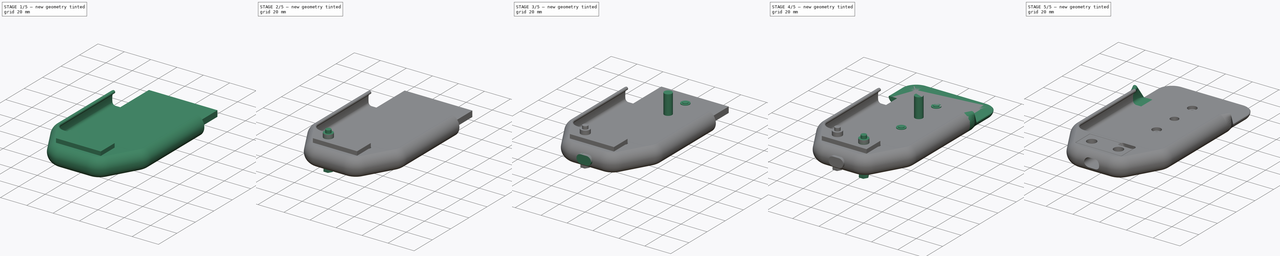
[diagram: build sequence overview — one tinted view per stage of 5, left to right]
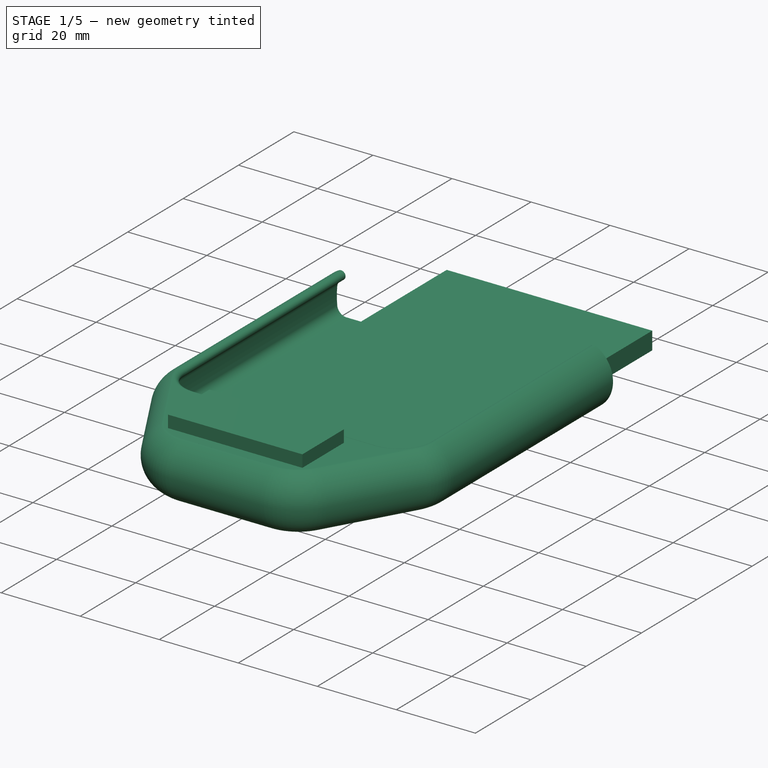
[diagram: stage 1 of 5 — iso view after this stage's code; geometry added in this stage tinted green]
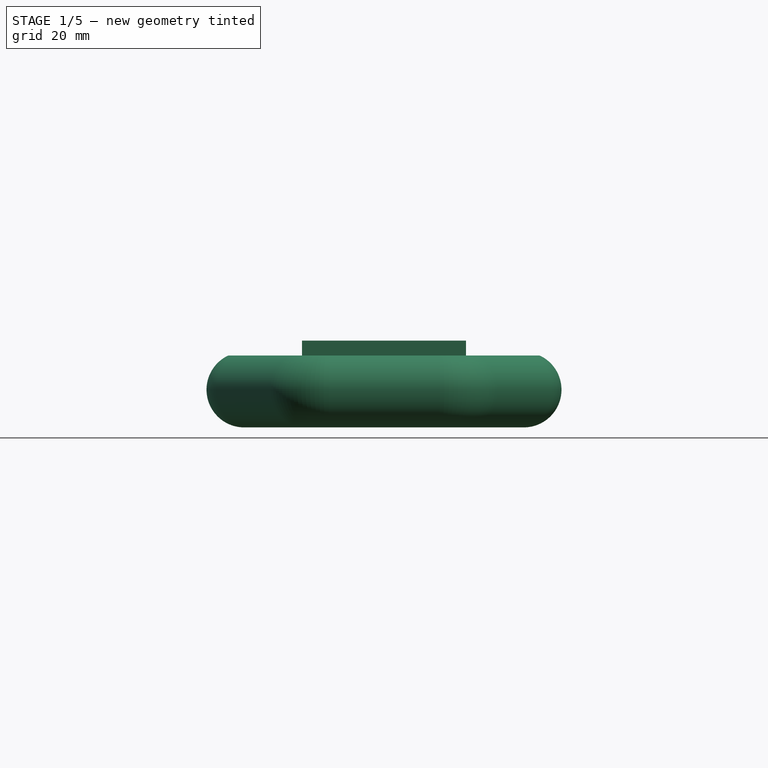
[diagram: stage 1 of 5 — front view after this stage's code; geometry added in this stage tinted green]
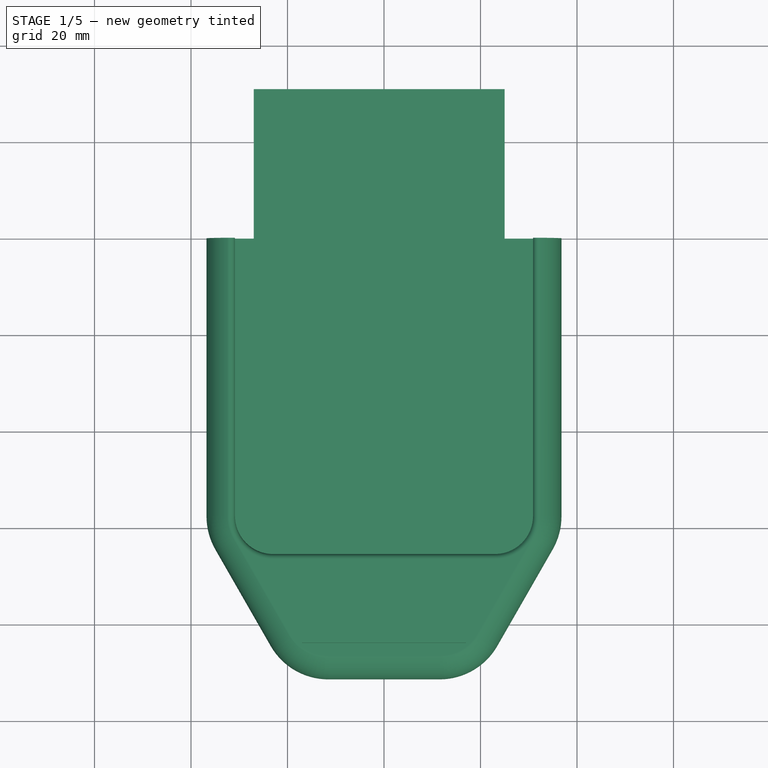
[diagram: stage 1 of 5 — top view after this stage's code; geometry added in this stage tinted green]
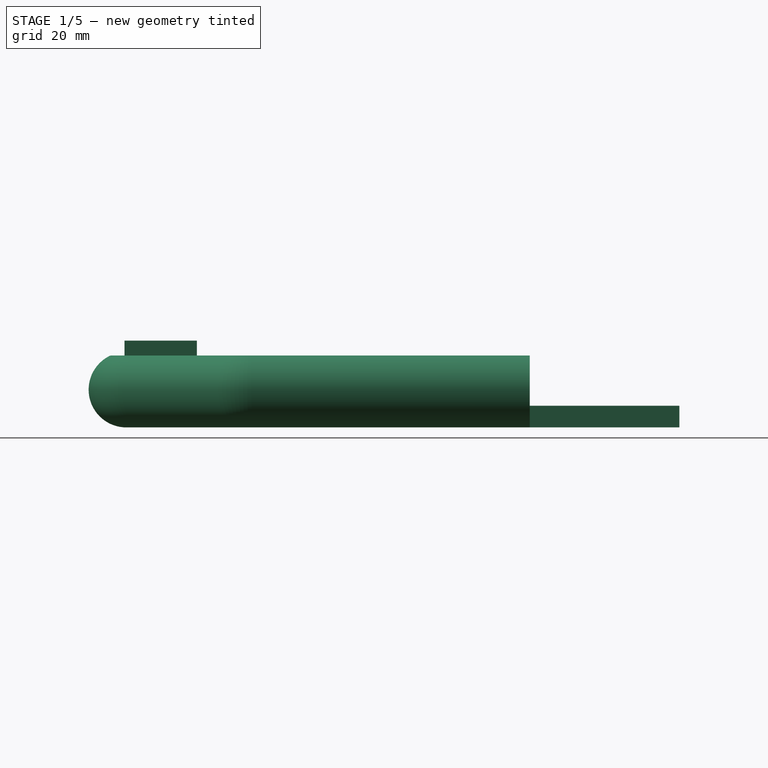
[diagram: stage 1 of 5 — right view after this stage's code; geometry added in this stage tinted green]
FCSTD DOCUMENT  (FreeCAD 0.18R16093 (Git))
Label: galaxy_a3_car_mount
License: All rights reserved
LicenseURL: http://en.wikipedia.org/wiki/All_rights_reserved
objects: Sketcher::SketchObject×14, Part::MultiFuse×6, Part::Cylinder×5, PartDesign::Body×3, Image::ImagePlane×2, Part::Extrusion×2, Part::Loft×2, Part::Mirroring×2, PartDesign::AdditiveBox×2, PartDesign::SubtractivePipe×2, Part::Cut×2, Part::Box×2, Spreadsheet::Sheet×1, PartDesign::FeatureBase×1, Part::RegularPolygon×1, Part::Sweep×1, PartDesign::SubtractiveBox×1, PartDesign::SubtractiveLoft×1, Part::MultiCommon×1
note: 54 computed .brp shape members not serialized (recipe doc carries the construction recipe); baked Part::Feature solids carry a one-line shape summary decoded from their .brp

FEATURE [Sketcher::SketchObject] Sketch009  label="KlemmSweepPath"
  ExternalGeometry = -> [Sketch004,Sketch003]
  MapMode = 5
  Support = -> [XY_Plane]
  sketch-geometry (9):
    g0: ArcOfCircle CenterX=23 CenterY=-57.65 CenterZ=0 NormalX=0 NormalY=0 NormalZ=1 AngleXU=0 Radius=10.1 StartAngle=5.76241 EndAngle=6.28319
    g1: LineSegment StartX=31.7611 StartY=-62.6753 StartZ=0 EndX=20.2893 EndY=-82.6753 EndZ=0
    g2: LineSegment StartX=11.5282 StartY=-87.75 StartZ=0 EndX=-11.5282 EndY=-87.75 EndZ=0
    g3: LineSegment StartX=-20.2893 StartY=-82.6753 StartZ=0 EndX=-31.7611 EndY=-62.6753 EndZ=0
    g4: ArcOfCircle CenterX=-23 CenterY=-57.65 CenterZ=0 NormalX=0 NormalY=0 NormalZ=1 AngleXU=0 Radius=10.1 StartAngle=3.14159 EndAngle=3.66237
    g5: ArcOfCircle CenterX=-11.5282 CenterY=-77.65 CenterZ=0 NormalX=0 NormalY=0 NormalZ=1 AngleXU=0 Radius=10.1 StartAngle=3.66237 EndAngle=4.71239
    g6: ArcOfCircle CenterX=11.5282 CenterY=-77.65 CenterZ=0 NormalX=0 NormalY=0 NormalZ=1 AngleXU=0 Radius=10.1 StartAngle=4.71239 EndAngle=5.76241
    g7: LineSegment StartX=33.1 StartY=-57.65 StartZ=0 EndX=33.1 EndY=0 EndZ=0
    g8: LineSegment StartX=-33.1 StartY=-57.65 StartZ=0 EndX=-33.1 EndY=0 EndZ=0
  constraints (22):
    c: Coincident(g0,g-3)
    c: Coincident(g0,g-3)
    c: Tangent(g4,g3) = 1.5708
    c: Tangent(g3,g5) = 1.5708
    c: Tangent(g5,g2) = 1.5708
    c: Tangent(g2,g6) = 1.5708
    c: Tangent(g6,g1) = 1.5708
    c: Tangent(g1,g0) = 1.5708
    c: Equal(g0,g6)
    c: Equal(g6,g5)
    c: Equal(g5,g4)
    c: Symmetric(g2,g2,g-2)
    c: DistanceY(g2,g-3) = 20
    c: Equal(g1,g2)
    c: Symmetric(g4,g0,g-2)
    c: Horizontal(g4,g0)
    c: Coincident(g7,g0)
    c: Horizontal(g7,g-4)
    c: Vertical(g7)
    c: Coincident(g8,g4)
    c: PointOnObject(g8,g-1)
    c: Vertical(g8)
FEATURE [Sketcher::SketchObject] Sketch010  label="outer_bevel"
  MapMode = 5
  Placement = pos=(0,0,0) rot=(1,0,0;1.5708rad)
  Support = -> [XZ_Plane]
  sketch-geometry (7):
    g0: ArcOfCircle CenterX=31.9997 CenterY=9.31965 CenterZ=0 NormalX=0 NormalY=0 NormalZ=1 AngleXU=0 Radius=1.1 StartAngle=1.1028 EndAngle=1.5708
    g1: ArcOfCircle CenterX=28.9684 CenterY=3.32221 CenterZ=0 NormalX=0 NormalY=0 NormalZ=1 AngleXU=0 Radius=7.82 StartAngle=4.71239 EndAngle=7.38599
    g2: LineSegment StartX=31.9997 StartY=10.4196 StartZ=0 EndX=31.9997 EndY=15.4196 EndZ=0
    g3: LineSegment StartX=31.9997 StartY=15.4196 StartZ=0 EndX=71.9997 EndY=15.4196 EndZ=0
    g4: LineSegment StartX=71.9997 StartY=15.4196 StartZ=0 EndX=71.9997 EndY=-9.49779 EndZ=0
    g5: LineSegment StartX=71.9997 StartY=-9.49779 StartZ=0 EndX=28.9684 EndY=-9.49779 EndZ=0
    g6: LineSegment StartX=28.9684 StartY=-9.49779 StartZ=0 EndX=28.9684 EndY=-4.49779 EndZ=0
  constraints (22):
    c: Radius(g1) = 7.82
    c: DistanceX(g1) = 28.9684
    c: DistanceY(g1) = 3.32221
    c: DistanceX(g0) = 31.9997
    c: Vertical(g1,g1)
    c: Tangent(g1,g0) = -1.5708
    c: Radius(g0) = 1.1
    c: Vertical(g0,g0)
    c: Vertical(g2)
    c: Coincident(g2,g3)
    c: Horizontal(g3)
    c: Coincident(g3,g4)
    c: Vertical(g4)
    c: Coincident(g4,g5)
    c: Coincident(g5,g6)
    c: Coincident(g6,g1)
    c: Vertical(g6)
    c: Horizontal(g5)
    c: DistanceY(g6,g6) = 5
    c: DistanceY(g2,g2) = 5
    c: DistanceX(g3,g3) = 40
    c: Coincident(g2,g0)
FEATURE [PartDesign::AdditiveBox] Box001
  AttacherType = Attacher::AttachEngine3D
  AttachmentOffset = pos=(-40,-95,-4.5) rot=(0,0,1;0rad)
  Height = 14.92
  Length = 80
  MapMode = 2
  Placement = pos=(-40,-95,-4.5) rot=(0,0,1;0rad)
  Support = -> [X_Axis]
  Width = 95
FEATURE [Sketcher::SketchObject] Sketch011  label="inner_bevel"
  ExternalGeometry = -> [Sketch]
  MapMode = 5
  Placement = pos=(0,0,0) rot=(1,0,0;1.5708rad)
  Support = -> [XZ_Plane]
  expr: Constraints[14] = Sketch003.Constraints[19]
  expr: Constraints[2] = Sketch003.Constraints[7]
  expr: Constraints[3] = Sketch003.Constraints[8]
  expr: Constraints[9] = Sketch003.Constraints[14]
  expr: Constraints[7] = Sketch003.Constraints[12]
  expr: Constraints[4] = Sketch003.Constraints[9]
  sketch-geometry (8):
    g0: ArcOfCircle CenterX=31.9998 CenterY=9.31961 CenterZ=0 NormalX=0 NormalY=0 NormalZ=1 AngleXU=0 Radius=1.1 StartAngle=1.5708 EndAngle=4.33695
    g1: LineSegment StartX=25 StartY=0 StartZ=0 EndX=30.647 EndY=0 EndZ=0
    g2: ArcOfCircle CenterX=30.7791 CenterY=6.22251 CenterZ=0 NormalX=0 NormalY=0 NormalZ=1 AngleXU=0 Radius=2.22898 StartAngle=0.085128 EndAngle=1.19535
    g3: ArcOfCircle CenterX=8.09053 CenterY=4.2864 CenterZ=0 NormalX=0 NormalY=0 NormalZ=1 AngleXU=0 Radius=25 StartAngle=6.19806 EndAngle=6.36831
    g4: ArcOfCircle CenterX=30.647 CenterY=2.36156 CenterZ=0 NormalX=0 NormalY=0 NormalZ=1 AngleXU=0 Radius=2.36156 StartAngle=4.71239 EndAngle=6.19806
    g5: LineSegment StartX=25 StartY=0 StartZ=0 EndX=25 EndY=15 EndZ=0
    g6: LineSegment StartX=25 StartY=15 StartZ=0 EndX=31.9998 EndY=15 EndZ=0
    g7: LineSegment StartX=31.9998 StartY=15 StartZ=0 EndX=31.9998 EndY=10.4196 EndZ=0
  constraints (26):
    c: Horizontal(g1)
    c: PointOnObject(g1,g-1)
    c: Radius(g0) = 1.1
    c: Radius(g3) = 25
    c: DistanceX(g3) = 33
    c: Tangent(g2,g3) = -1.5708
    c: Vertical(g2,g3)
    c: DistanceY(g3) = 2.16077
    c: Tangent(g0,g2) = 1.5708
    c: DistanceX(g0) = 31.5964
    c: Coincident(g4,g1)
    c: Coincident(g4,g3)
    c: Tangent(g4,g3)
    c: Vertical(g4,g1)
    c: DistanceY(g0) = 8.29623
    c: DistanceX(g1) = 25
    c: Coincident(g1,g5)
    c: Vertical(g5)
    c: Coincident(g5,g6)
    c: Horizontal(g6)
    c: DistanceY(g5,g5) = 15
    c: DistanceX(g0) = 31.9998
    c: Vertical(g0,g0)
    c: Coincident(g7,g6)
    c: Coincident(g7,g0)
    c: Vertical(g7)
FEATURE [PartDesign::SubtractivePipe] SubtractivePipe
  AuxilleryCurvelinear = true
  AuxillerySpineTangent = false
  BaseFeature = -> Box001
  Binormal = (0,0,0)
  Mode = 0
  Placement = pos=(-40,-95,-4.5) rot=(0,0,1;0rad)
  Profile = -> Sketch010
  Spine = -> Sketch009 [Edge9,Edge8,Edge7,Edge6,Edge5,Edge4,Edge3,Edge2,Edge1]
  SpineTangent = false
  Transformation = 0
  Transition = 0
FEATURE [PartDesign::SubtractivePipe] SubtractivePipe001
  AuxilleryCurvelinear = true
  AuxillerySpineTangent = false
  BaseFeature = -> SubtractivePipe
  Binormal = (0,0,0)
  Mode = 0
  Placement = pos=(-40,-95,-4.5) rot=(0,0,1;0rad)
  Profile = -> Sketch011
  Spine = -> Sketch004 [Edge1,Edge2,Edge3,Edge4,Edge5]
  SpineTangent = false
  Transformation = 0
  Transition = 0
FEATURE [PartDesign::SubtractiveBox] Box002
  AttacherType = Attacher::AttachEngine3D
  AttachmentOffset = pos=(-26,-62,0) rot=(0,0,1;0rad)
  BaseFeature = -> SubtractivePipe001
  Height = 15
  Length = 52
  MapMode = 2
  Placement = pos=(-26,-62,0) rot=(0,0,1;0rad)
  Support = -> [X_Axis]
  Width = 62
FEATURE [PartDesign::AdditiveBox] Box003
  AttacherType = Attacher::AttachEngine3D
  AttachmentOffset = pos=(-27,0,-4.5) rot=(0,0,1;0rad)
  BaseFeature = -> Box002
  Height = 4.5
  Length = 52
  MapMode = 5
  Placement = pos=(-27,0,-4.5) rot=(0,0,1;0rad)
  Support = -> [XY_Plane]
  Width = 31
FEATURE [Part::Box] Box004  label="ClampSeparatorInner"
  AttacherType = Attacher::AttachEngine3D
  Height = 10
  Length = 34
  Placement = pos=(-17,-84,3.5) rot=(0,0,1;0rad)
  Width = 15
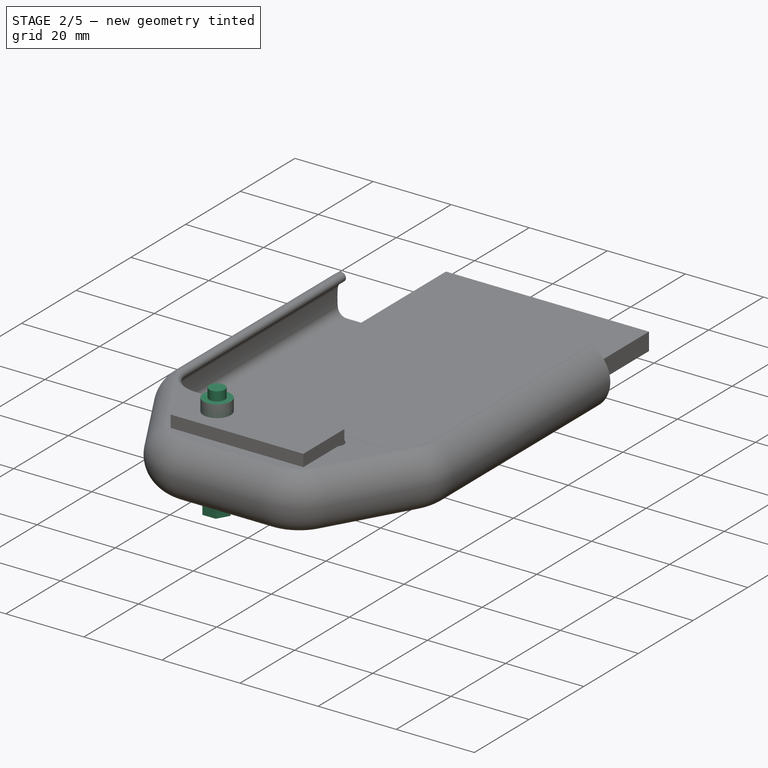
[diagram: stage 2 of 5 — iso view after this stage's code; geometry added in this stage tinted green]
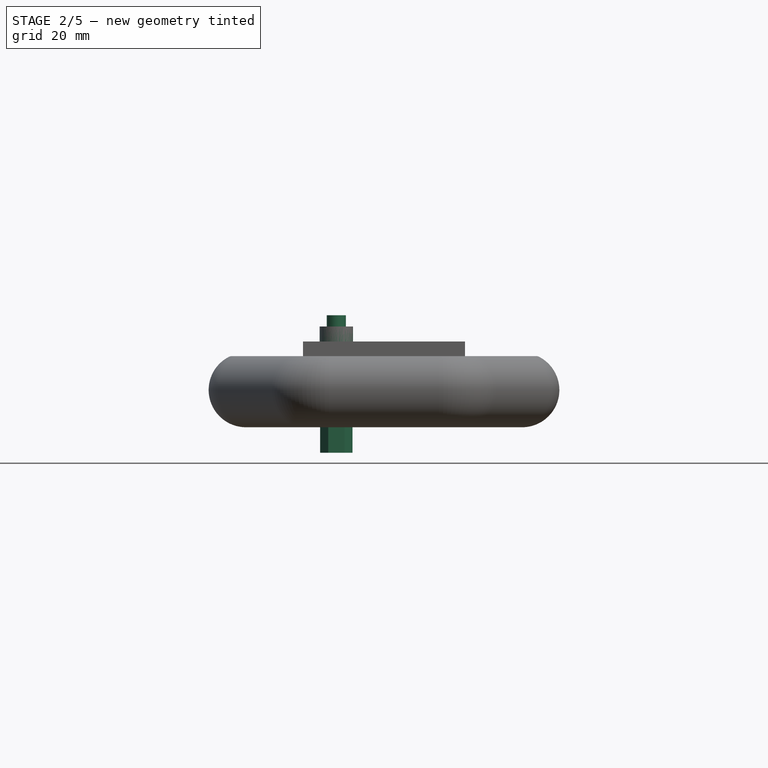
[diagram: stage 2 of 5 — front view after this stage's code; geometry added in this stage tinted green]
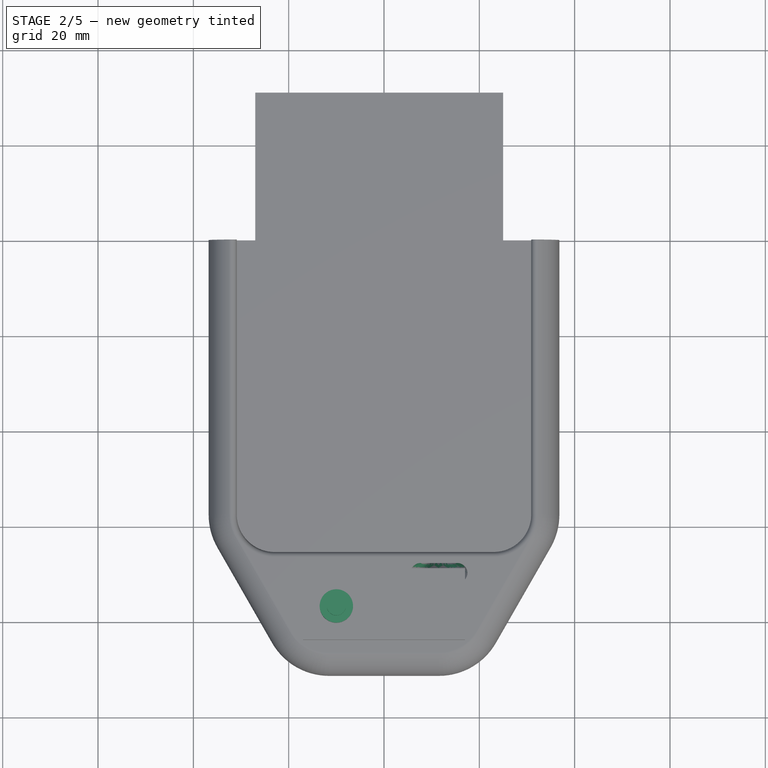
[diagram: stage 2 of 5 — top view after this stage's code; geometry added in this stage tinted green]
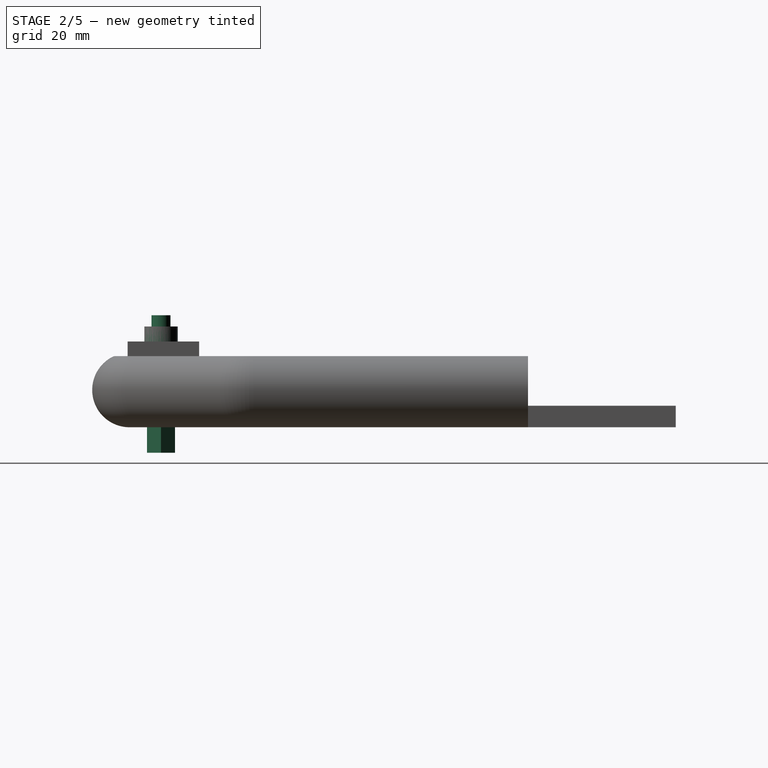
[diagram: stage 2 of 5 — right view after this stage's code; geometry added in this stage tinted green]
FEATURE [Part::Cylinder] Cylinder003  label="ScrewHeadBore"
  Angle = 360
  AttacherType = Attacher::AttachEngine3D
  Height = 10
  Placement = pos=(10,-77,6.65) rot=(0,0,1;0rad)
  Radius = 3.5
  expr: Placement.Base.z = 3.4 + 0.25 + 3
FEATURE [Part::RegularPolygon] RegularPolygon002  label="Regular polygon002"
  AttacherType = Attacher::AttachEngine3D
  Circumradius = 3.4
  Placement = pos=(10,-77,0) rot=(0,0,1;0rad)
  Polygon = 6
FEATURE [Part::Extrusion] Extrude003  label="NutBore"
  Base = -> RegularPolygon002
  Dir = (0,0,1)
  DirMode = 2
  FaceMakerClass = Part::FaceMakerBullseye
  LengthFwd = 0
  LengthRev = 10
  Placement = pos=(0,0,0.15) rot=(0,0,1;0rad)
  Solid = true
  Symmetric = false
  expr: Placement.Base.z = 3.4 - 0.25 - 3
FEATURE [Part::Cylinder] Cylinder004  label="ScrewBore"
  Angle = 360
  AttacherType = Attacher::AttachEngine3D
  Height = 20
  Placement = pos=(10,-77,-1) rot=(0,0,1;0rad)
  Radius = 2
FEATURE [Part::MultiFuse] Fusion003  label="ClampScrewHole"
  Shapes = -> [Cylinder004,Extrude003,Cylinder003]
FEATURE [Part::Mirroring] Part__Mirroring001  label="ClampScrewHole2"
  Base = (0,0,0)
  Normal = (1,0,0)
  Source = -> Fusion003
FEATURE [Sketcher::SketchObject] Sketch012
  AttachmentOffset = pos=(0,-1.5,67) rot=(0,0,1;0rad)
  MapMode = 5
  Placement = pos=(0,-67,-1.5) rot=(1,0,0;1.5708rad)
  Support = -> [XZ_Plane]
  sketch-geometry (1):
    g0: Circle CenterX=11.4 CenterY=4.7 CenterZ=0 NormalX=0 NormalY=0 NormalZ=1 AngleXU=0 Radius=2
  constraints (3):
    c: Radius(g0) = 2
    c: DistanceX(g-1,g0) = 11.4
    c: DistanceY(g-1,g0) = 4.7
FEATURE [Sketcher::SketchObject] Sketch013
  AttachmentOffset = pos=(0,0,11) rot=(0,0,1;0rad)
  MapMode = 5
  Placement = pos=(0,0,11) rot=(0,0,1;0rad)
  Support = -> [XY_Plane]
  sketch-geometry (4):
    g0: ArcOfCircle CenterX=7.42 CenterY=-70.1729 CenterZ=0 NormalX=0 NormalY=0 NormalZ=1 AngleXU=0 Radius=2.2 StartAngle=1.5708 EndAngle=4.71239
    g1: ArcOfCircle CenterX=15.64 CenterY=-70.1729 CenterZ=0 NormalX=0 NormalY=0 NormalZ=1 AngleXU=0 Radius=2.2 StartAngle=4.71239 EndAngle=7.85398
    g2: LineSegment StartX=7.42 StartY=-72.3729 StartZ=0 EndX=15.64 EndY=-72.3729 EndZ=0
    g3: LineSegment StartX=7.42 StartY=-67.9729 StartZ=0 EndX=15.64 EndY=-67.9729 EndZ=0
  constraints (10):
    c: Tangent(g0,g3) = 1.5708
    c: Tangent(g0,g2) = -1.5708
    c: Tangent(g2,g1) = -1.5708
    c: Tangent(g3,g1) = 1.5708
    c: Horizontal(g2)
    c: Equal(g0,g1)
    c: DistanceY(g1) = -70.1729
    c: Radius(g1) = 2.2
    c: DistanceX(g3,g3) = 8.22
    c: DistanceX(g-1,g0) = 7.42
FEATURE [PartDesign::SubtractiveLoft] SubtractiveLoft
  BaseFeature = -> Box003
  Closed = false
  Placement = pos=(-27,0,-4.5) rot=(0,0,1;0rad)
  Profile = -> Sketch012
  Ruled = false
  Sections = -> [Sketch013]
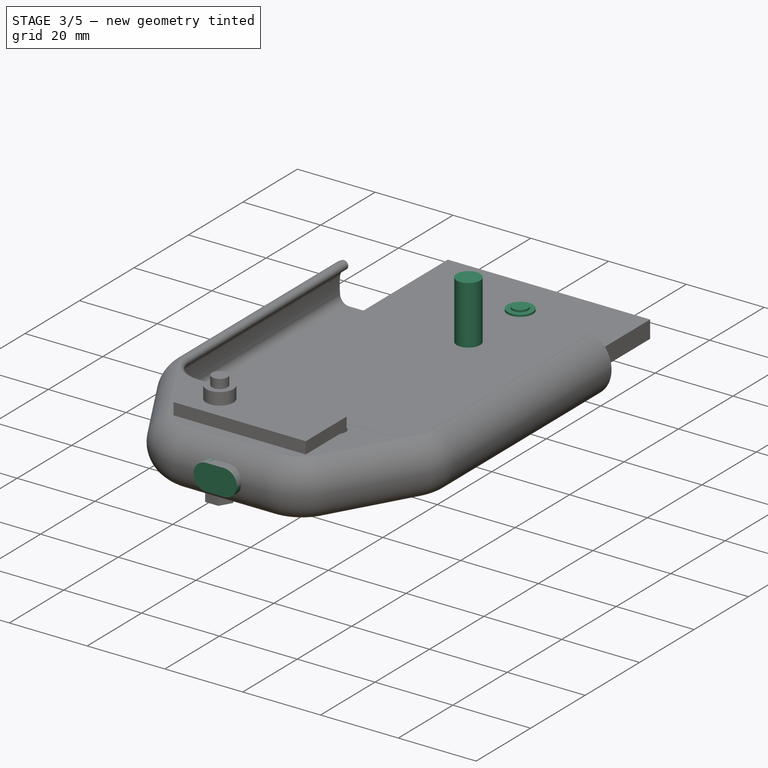
[diagram: stage 3 of 5 — iso view after this stage's code; geometry added in this stage tinted green]
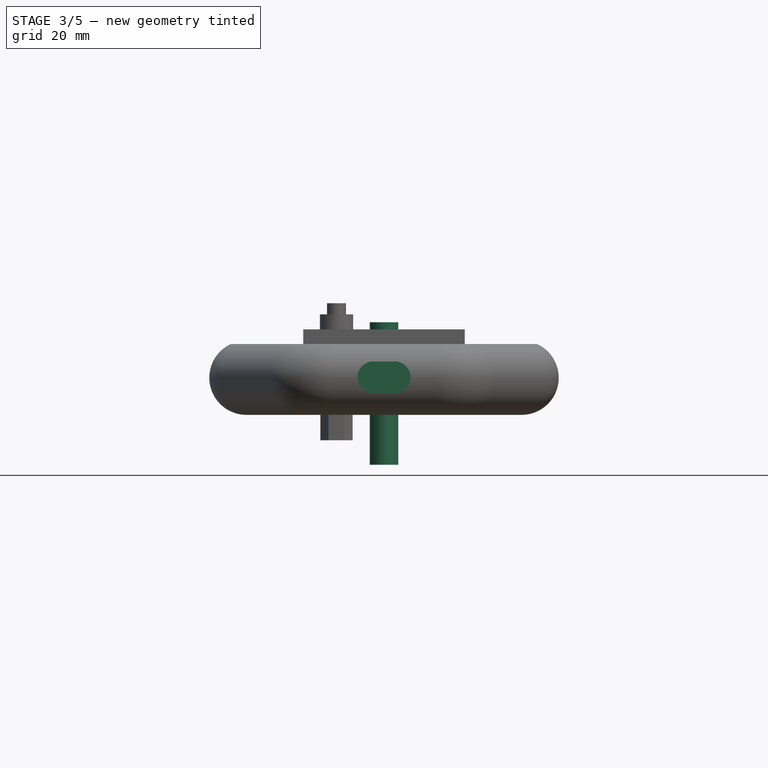
[diagram: stage 3 of 5 — front view after this stage's code; geometry added in this stage tinted green]
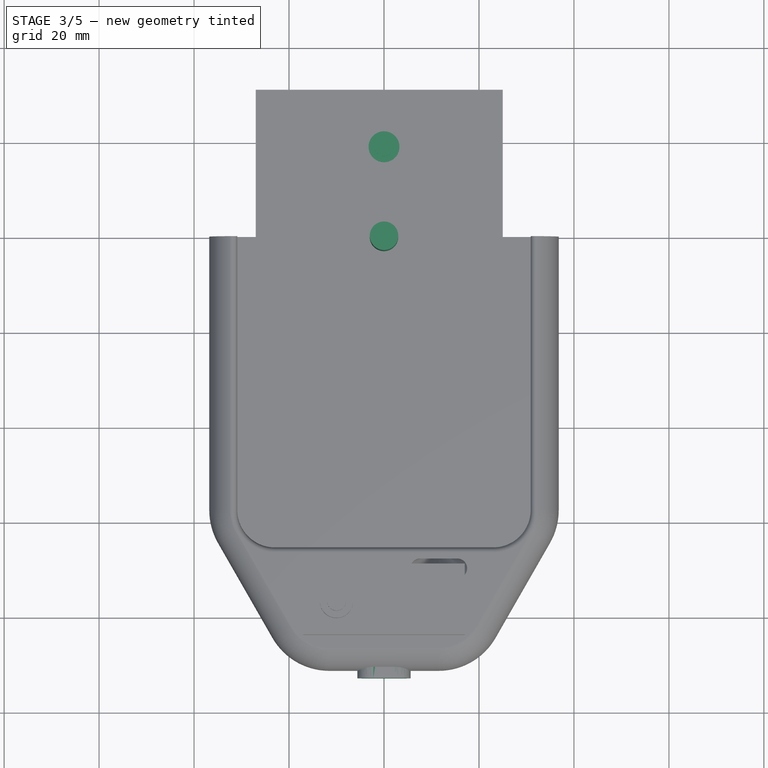
[diagram: stage 3 of 5 — top view after this stage's code; geometry added in this stage tinted green]
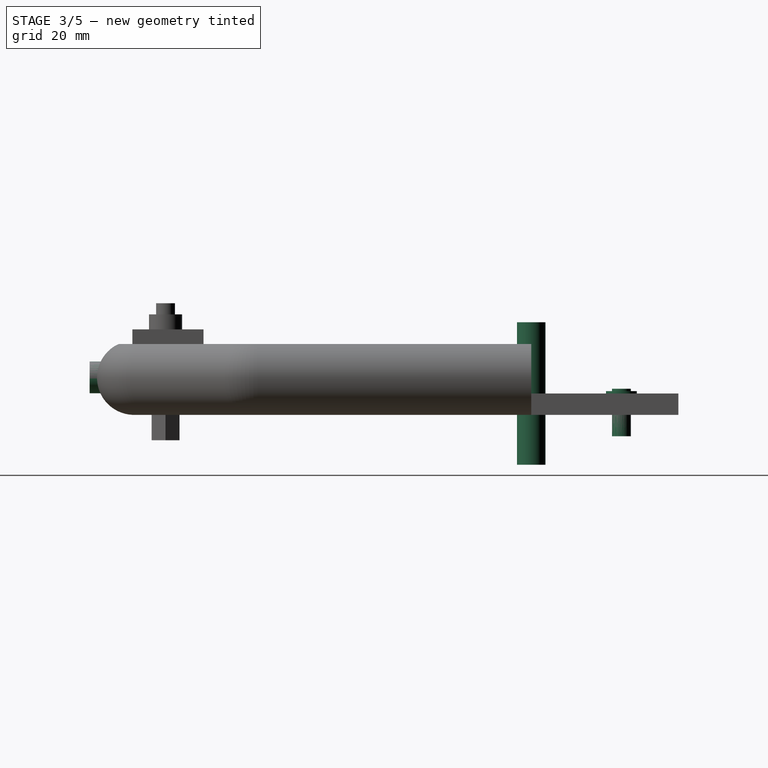
[diagram: stage 3 of 5 — right view after this stage's code; geometry added in this stage tinted green]
FEATURE [Image::ImagePlane] ImagePlane  label="a3_front"
  Placement = pos=(5.75,-19.85,-1) rot=(0,0,1;0rad)
  XSize = 94.8734
  YSize = 190.152
  expr: YSize = 469 * 0.40544193
  expr: XSize = 234 * 0.40544193
FEATURE [Sketcher::SketchObject] Sketch  label="front"
  MapMode = 5
  Support = -> [XY_Plane]
  sketch-geometry (8):
    g0: LineSegment StartX=-33 StartY=57.65 StartZ=0 EndX=-33 EndY=-57.65 EndZ=0
    g1: LineSegment StartX=33 StartY=57.65 StartZ=0 EndX=33 EndY=-57.65 EndZ=0
    g2: LineSegment StartX=-23 StartY=67.65 StartZ=0 EndX=23 EndY=67.65 EndZ=0
    g3: LineSegment StartX=-23 StartY=-67.65 StartZ=0 EndX=23 EndY=-67.65 EndZ=0
    g4: ArcOfCircle CenterX=-23 CenterY=57.65 CenterZ=0 NormalX=0 NormalY=0 NormalZ=1 AngleXU=0 Radius=10 StartAngle=1.5708 EndAngle=3.14159
    g5: ArcOfCircle CenterX=23 CenterY=57.65 CenterZ=0 NormalX=0 NormalY=0 NormalZ=1 AngleXU=0 Radius=10 StartAngle=0 EndAngle=1.5708
    g6: ArcOfCircle CenterX=-23 CenterY=-57.65 CenterZ=0 NormalX=0 NormalY=0 NormalZ=1 AngleXU=0 Radius=10 StartAngle=3.14159 EndAngle=4.71239
    g7: ArcOfCircle CenterX=23 CenterY=-57.65 CenterZ=0 NormalX=0 NormalY=0 NormalZ=1 AngleXU=0 Radius=10 StartAngle=4.71239 EndAngle=6.28319
  constraints (18):
    c: Vertical(g0)
    c: Vertical(g1)
    c: Symmetric(g1,g0,g-2)
    c: DistanceX(g0,g1) = 66
    c: Horizontal(g2)
    c: Horizontal(g3)
    c: Symmetric(g3,g2,g-1)
    c: DistanceY(g3,g2) = 135.3
    c: Tangent(g4,g0) = -1.5708
    c: Tangent(g4,g2) = 1.5708
    c: Radius(g4) = 10
    c: Tangent(g5,g2) = 1.5708
    c: Tangent(g5,g1) = 1.5708
    c: Tangent(g1,g7) = 1.5708
    c: Tangent(g7,g3) = -1.5708
    c: Tangent(g6,g3) = -1.5708
    c: Tangent(g6,g0) = -1.5708
    c: Equal(g6,g4)
FEATURE [Image::ImagePlane] ImagePlane001  label="a3_bottom"
  Placement = pos=(2.1,5,23.6) rot=(-1,0,0;4.71239rad)
  XSize = 82.7155
  YSize = 57.9064
  expr: YSize = 113 * 0.57650178 * 8 / 9
  expr: XSize = 150 * 0.57650178 * 66 / 69
FEATURE [Sketcher::SketchObject] Sketch001  label="bottom"
  AttachmentOffset = pos=(0,0,67.65) rot=(0,0,1;0rad)
  MapMode = 5
  Placement = pos=(0,-67.65,-1.5e-14) rot=(1,0,0;1.5708rad)
  Support = -> [XZ_Plane]
  sketch-geometry (5):
    g0: ArcOfCircle CenterX=-2.75 CenterY=3.4 CenterZ=0 NormalX=0 NormalY=0 NormalZ=1 AngleXU=0 Radius=2 StartAngle=1.5708 EndAngle=4.71239
    g1: ArcOfCircle CenterX=2.75 CenterY=3.4 CenterZ=0 NormalX=0 NormalY=0 NormalZ=1 AngleXU=0 Radius=2 StartAngle=4.71239 EndAngle=7.85398
    g2: LineSegment StartX=-2.75 StartY=5.4 StartZ=0 EndX=2.75 EndY=5.4 EndZ=0
    g3: LineSegment StartX=-2.75 StartY=1.4 StartZ=0 EndX=2.75 EndY=1.4 EndZ=0
    g4: Circle CenterX=11.4 CenterY=4.7 CenterZ=0 NormalX=0 NormalY=0 NormalZ=1 AngleXU=0 Radius=2
  constraints (16):
    c: Vertical(g0,g0)
    c: Vertical(g0,g0)
    c: Vertical(g1,g1)
    c: Vertical(g1,g1)
    c: Equal(g1,g0)
    c: Symmetric(g0,g1,g-2)
    c: Radius(g1) = 2
    c: DistanceY(g-1,g0) = 3.4
    c: DistanceX(g0,g1) = 5.5
    c: Coincident(g2,g0)
    c: Coincident(g2,g1)
    c: Coincident(g3,g0)
    c: Coincident(g3,g1)
    c: Radius(g4) = 2
    c: DistanceX(g-1,g4) = 11.4
    c: DistanceY(g-1,g4) = 4.7
FEATURE [Spreadsheet::Sheet] Spreadsheet  label="p"
  cells = B5=General Clearance; C5=gc; D5(gc)=0.1
FEATURE [Sketcher::SketchObject] Sketch002  label="test_shell_1"
  ExternalGeometry = -> [Sketch]
  MapMode = 5
  Support = -> [XY_Plane]
  expr: Constraints[13] = p.gc
  sketch-geometry (12):
    g0: LineSegment StartX=33.1 StartY=8 StartZ=0 EndX=33.1 EndY=-57.65 EndZ=0
    g1: LineSegment StartX=23 StartY=-67.75 StartZ=0 EndX=-23 EndY=-67.75 EndZ=0
    g2: LineSegment StartX=-33.1 StartY=-57.65 StartZ=0 EndX=-33.1 EndY=10 EndZ=0
    g3: ArcOfCircle CenterX=23 CenterY=-57.65 CenterZ=0 NormalX=0 NormalY=0 NormalZ=1 AngleXU=0 Radius=10.1 StartAngle=4.71239 EndAngle=6.28319
    g4: ArcOfCircle CenterX=-23 CenterY=-57.65 CenterZ=0 NormalX=0 NormalY=0 NormalZ=1 AngleXU=0 Radius=10.1 StartAngle=3.14159 EndAngle=4.71239
    g5: LineSegment StartX=33.1 StartY=8 StartZ=0 EndX=34.3 EndY=8 EndZ=0
    g6: LineSegment StartX=34.3 StartY=8 StartZ=0 EndX=34.3 EndY=-57.65 EndZ=0
    g7: LineSegment StartX=23 StartY=-68.95 StartZ=0 EndX=-23 EndY=-68.95 EndZ=0
    g8: LineSegment StartX=-33.1 StartY=10 StartZ=0 EndX=-34.3 EndY=10 EndZ=0
    g9: LineSegment StartX=-34.3 StartY=10 StartZ=0 EndX=-34.3 EndY=-57.65 EndZ=0
    g10: ArcOfCircle CenterX=23 CenterY=-57.65 CenterZ=0 NormalX=0 NormalY=0 NormalZ=1 AngleXU=0 Radius=11.3 StartAngle=4.71239 EndAngle=6.28319
    g11: ArcOfCircle CenterX=-23 CenterY=-57.65 CenterZ=0 NormalX=0 NormalY=0 NormalZ=1 AngleXU=0 Radius=11.3 StartAngle=3.14159 EndAngle=4.71239
  constraints (36):
    c: Vertical(g0)
    c: Horizontal(g1)
    c: Vertical(g2)
    c: Symmetric(g4,g-5,g-2)
    c: Equal(g3,g4)
    c: Coincident(g3,g0)
    c: Coincident(g1,g3)
    c: Horizontal(g-5,g0)
    c: Vertical(g1,g-5)
    c: Coincident(g3,g-5)
    c: Coincident(g4,g1)
    c: Coincident(g2,g4)
    c: Horizontal(g2,g0)
    c: DistanceX(g-5,g0) = 0.1
    c: DistanceY(g-1,g0) = 8
    c: DistanceY(g-1,g2) = 10
    c: Coincident(g5,g0)
    c: Horizontal(g5)
    c: Coincident(g6,g5)
    c: Vertical(g6)
    c: Horizontal(g7)
    c: Coincident(g8,g2)
    c: Horizontal(g8)
    c: Coincident(g9,g8)
    c: Vertical(g9)
    c: DistanceX(g5,g5) = 1.2
    c: Coincident(g10,g3)
    c: Coincident(g10,g6)
    c: Coincident(g10,g7)
    c: Coincident(g11,g4)
    c: Coincident(g11,g7)
    c: Coincident(g11,g9)
    c: Horizontal(g6,g0)
    c: Vertical(g7,g1)
    c: Vertical(g7,g1)
    c: Horizontal(g9,g2)
FEATURE [Part::Cylinder] Cylinder  label="CenterMountHole"
  Angle = 360
  AttacherType = Attacher::AttachEngine3D
  Height = 30
  Placement = pos=(0,0,-15) rot=(0,0,1;0rad)
  Radius = 3
FEATURE [Part::Cylinder] Cylinder001  label="ScrewMountTaper"
  Angle = 360
  AttacherType = Attacher::AttachEngine3D
  Height = 2.75
  Placement = pos=(0,0,-2.25) rot=(0,0,1;0rad)
  Radius = 3.25
FEATURE [Part::Cylinder] Cylinder002  label="ScrewMountHole"
  Angle = 360
  AttacherType = Attacher::AttachEngine3D
  Height = 10
  Placement = pos=(0,0,-9) rot=(0,0,1;0rad)
  Radius = 2
FEATURE [Part::MultiFuse] Fusion  label="TaperedScrewMountHole1"
  Placement = pos=(0,19,0) rot=(0,0,1;0rad)
  Shapes = -> [Cylinder001,Cylinder002]
  expr: Placement.Base.y = 38 / 2
FEATURE [PartDesign::FeatureBase] Clone
  BaseFeature = -> Fusion
  Placement = pos=(0,19,0) rot=(0,0,1;0rad)
FEATURE [Sketcher::SketchObject] Sketch003  label="shell_bevel_sketch"
  ExternalGeometry = -> [Sketch]
  MapMode = 5
  Placement = pos=(0,0,0) rot=(1,0,0;1.5708rad)
  Support = -> [XZ_Plane]
  sketch-geometry (10):
    g0: ArcOfCircle CenterX=31.9998 CenterY=9.31961 CenterZ=0 NormalX=0 NormalY=0 NormalZ=1 AngleXU=0 Radius=1.1 StartAngle=1.10287 EndAngle=4.33695
    g1: ArcOfCircle CenterX=28.9684 CenterY=3.32104 CenterZ=0 NormalX=0 NormalY=0 NormalZ=1 AngleXU=0 Radius=7.82104 StartAngle=0 EndAngle=0.689471
    g2: LineSegment StartX=28.9684 StartY=-4.5 StartZ=0 EndX=25 EndY=-4.5 EndZ=0
    g3: LineSegment StartX=25 StartY=-4.5 StartZ=0 EndX=25 EndY=0 EndZ=0
    g4: LineSegment StartX=25 StartY=0 StartZ=0 EndX=30.647 EndY=0 EndZ=0
    g5: ArcOfCircle CenterX=30.7791 CenterY=6.22251 CenterZ=0 NormalX=0 NormalY=0 NormalZ=1 AngleXU=0 Radius=2.22898 StartAngle=0.085128 EndAngle=1.19535
    g6: ArcOfCircle CenterX=8.09053 CenterY=4.2864 CenterZ=0 NormalX=0 NormalY=0 NormalZ=1 AngleXU=0 Radius=25 StartAngle=6.19806 EndAngle=6.36831
    g7: ArcOfCircle CenterX=30.647 CenterY=2.36156 CenterZ=0 NormalX=0 NormalY=0 NormalZ=1 AngleXU=0 Radius=2.36156 StartAngle=4.71239 EndAngle=6.19806
    g8: ArcOfCircle CenterX=28.9684 CenterY=3.32104 CenterZ=0 NormalX=0 NormalY=0 NormalZ=1 AngleXU=0 Radius=7.82104 StartAngle=4.71239 EndAngle=6.28319
    g9: ArcOfCircle CenterX=28.9684 CenterY=3.32104 CenterZ=0 NormalX=0 NormalY=0 NormalZ=1 AngleXU=0 Radius=7.82104 StartAngle=0.689471 EndAngle=1.10287
  constraints (32):
    c: DistanceX(g0) = 32.4959
    c: Coincident(g2,g3)
    c: Vertical(g3)
    c: Coincident(g3,g4)
    c: Horizontal(g4)
    c: PointOnObject(g3,g-1)
    c: DistanceX(g-1,g2) = 25
    c: Radius(g0) = 1.1
    c: Radius(g6) = 25
    c: DistanceX(g6) = 33
    c: Tangent(g5,g6) = -1.5708
    c: Vertical(g5,g6)
    c: DistanceY(g6) = 2.16077
    c: Tangent(g0,g5) = 1.5708
    c: DistanceX(g0) = 31.5964
    c: Coincident(g7,g4)
    c: Coincident(g7,g6)
    c: Tangent(g7,g6)
    c: Vertical(g7,g4)
    c: DistanceY(g0) = 8.29623
    c: DistanceY(g0) = 10.3014
    c: DistanceX(g1) = 28.9684
    c: Horizontal(g2)
    c: DistanceX(g2) = 28.9684
    c: Coincident(g8,g1)
    c: Coincident(g8,g2)
    c: Coincident(g8,g1)
    c: Horizontal(g1,g1)
    c: Coincident(g9,g1)
    c: Coincident(g9,g1)
    c: Tangent(g9,g0) = -1.5708
    c: Horizontal(g1,g0)
FEATURE [Sketcher::SketchObject] Sketch004  label="shell_sweep_path"
  ExternalGeometry = -> [Sketch]
  MapMode = 5
  Support = -> [XY_Plane]
  expr: Constraints[13] = p.gc
  sketch-geometry (5):
    g0: LineSegment StartX=33.1 StartY=0 StartZ=0 EndX=33.1 EndY=-57.65 EndZ=0
    g1: LineSegment StartX=23 StartY=-67.75 StartZ=0 EndX=-23 EndY=-67.75 EndZ=0
    g2: LineSegment StartX=-33.1 StartY=-57.65 StartZ=0 EndX=-33.1 EndY=0 EndZ=0
    g3: ArcOfCircle CenterX=23 CenterY=-57.65 CenterZ=0 NormalX=0 NormalY=0 NormalZ=1 AngleXU=0 Radius=10.1 StartAngle=4.71239 EndAngle=6.28319
    g4: ArcOfCircle CenterX=-23 CenterY=-57.65 CenterZ=0 NormalX=0 NormalY=0 NormalZ=1 AngleXU=0 Radius=10.1 StartAngle=3.14159 EndAngle=4.71239
  constraints (16):
    c: Vertical(g0)
    c: Horizontal(g1)
    c: Vertical(g2)
    c: Symmetric(g4,g-5,g-2)
    c: Equal(g3,g4)
    c: Coincident(g3,g0)
    c: Coincident(g1,g3)
    c: Horizontal(g-5,g0)
    c: Vertical(g1,g-5)
    c: Coincident(g3,g-5)
    c: Coincident(g4,g1)
    c: Coincident(g2,g4)
    c: Horizontal(g2,g0)
    c: DistanceX(g-5,g0) = 0.1
    c: Horizontal(g0,g-1)
    c: Horizontal(g2,g-1)
FEATURE [Sketcher::SketchObject] Sketch005  label="UsbCableCrossSection"
  AttachmentOffset = pos=(0,3.4,93) rot=(0,0,1;0rad)
  MapMode = 5
  Placement = pos=(0,-93,3.4) rot=(1,0,0;1.5708rad)
  Support = -> [XZ_Plane003]
  sketch-geometry (6):
    g0: LineSegment StartX=-2.25 StartY=3.35 StartZ=0 EndX=2.25 EndY=3.35 EndZ=0
    g1: LineSegment StartX=-2.25 StartY=-3.35 StartZ=0 EndX=2.25 EndY=-3.35 EndZ=0
    g2: ArcOfCircle CenterX=-2.25 CenterY=0 CenterZ=0 NormalX=0 NormalY=0 NormalZ=1 AngleXU=0 Radius=3.35 StartAngle=1.5708 EndAngle=4.71239
    g3: ArcOfCircle CenterX=2.25 CenterY=0 CenterZ=0 NormalX=0 NormalY=0 NormalZ=1 AngleXU=0 Radius=3.35 StartAngle=4.71239 EndAngle=7.85398
    g4: GeomPoint X=-5.6 Y=0 Z=0
    g5: GeomPoint X=5.6 Y=0 Z=0
  constraints (17):
    c: Horizontal(g0)
    c: PointOnObject(g2,g-1)
    c: Coincident(g2,g1)
    c: Coincident(g2,g0)
    c: Coincident(g3,g0)
    c: Coincident(g3,g1)
    c: Vertical(g3,g0)
    c: Vertical(g0,g1)
    c: Vertical(g0,g2)
    c: Vertical(g2,g1)
    c: Symmetric(g2,g3,g-2)
    c: DistanceY(g1,g0) = 6.7
    c: PointOnObject(g4,g-1)
    c: PointOnObject(g5,g-1)
    c: PointOnObject(g5,g3)
    c: PointOnObject(g4,g2)
    c: DistanceX(g4,g5) = 11.2
FEATURE [PartDesign::Body] Body003
  Group = -> [Sketch005]
  Origin = -> Origin003
FEATURE [Part::Extrusion] Extrude002  label="UsbCableGrip"
  Base = -> Sketch005
  Dir = (0,-1,-2e-16)
  DirMode = 2
  FaceMakerClass = Part::FaceMakerBullseye
  LengthFwd = 0
  LengthRev = 27
  Solid = true
  Symmetric = false
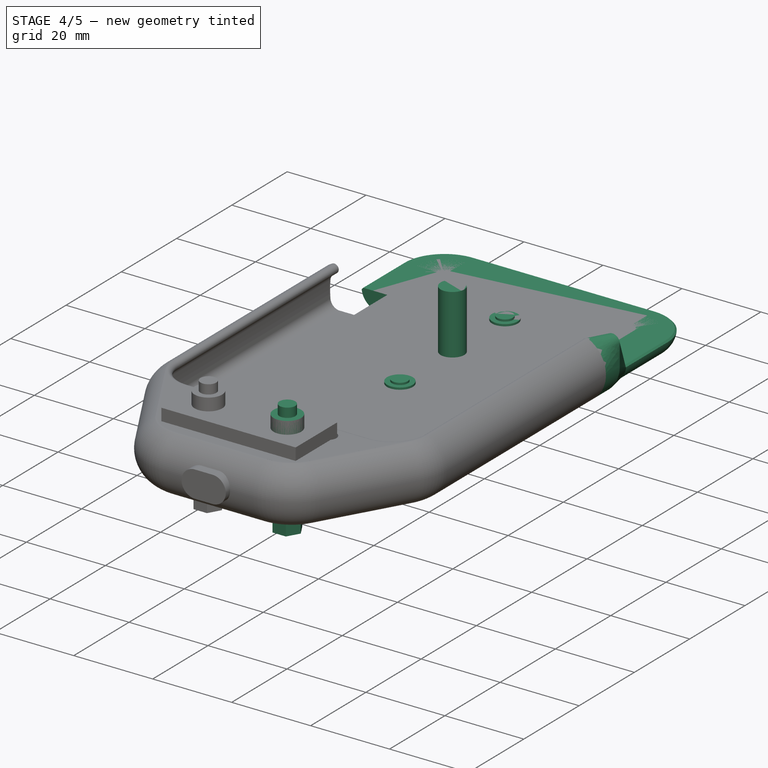
[diagram: stage 4 of 5 — iso view after this stage's code; geometry added in this stage tinted green]
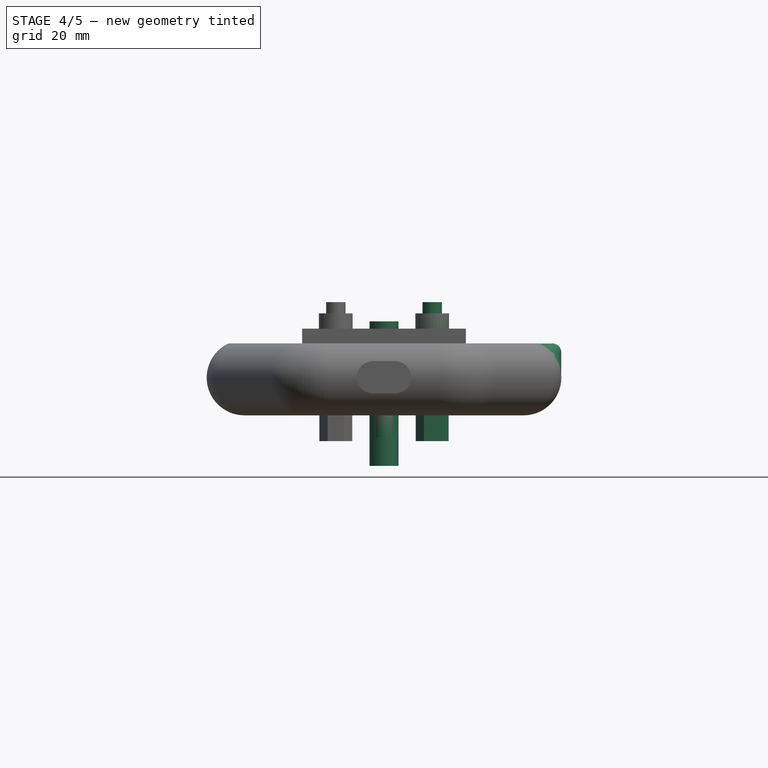
[diagram: stage 4 of 5 — front view after this stage's code; geometry added in this stage tinted green]
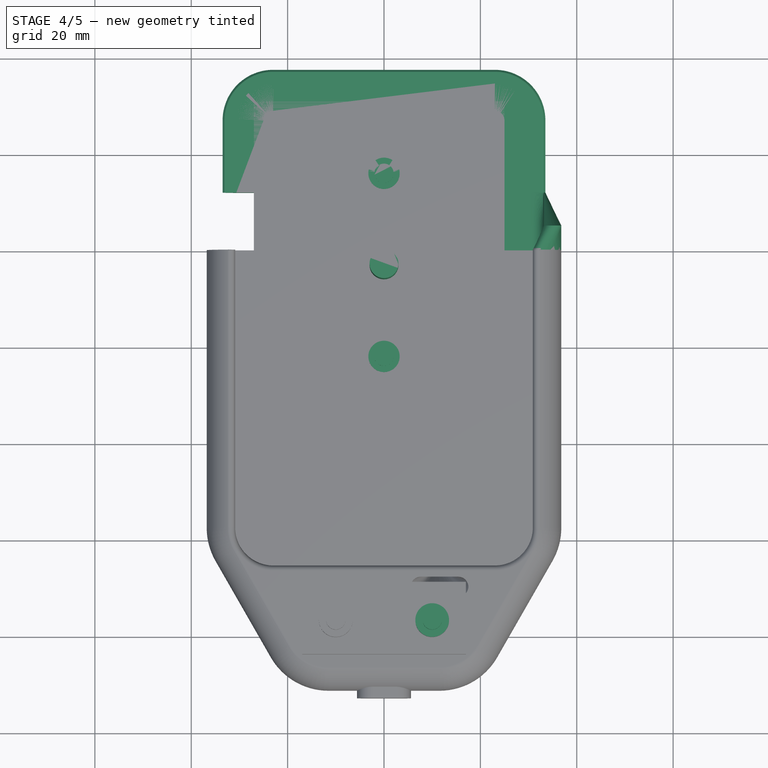
[diagram: stage 4 of 5 — top view after this stage's code; geometry added in this stage tinted green]
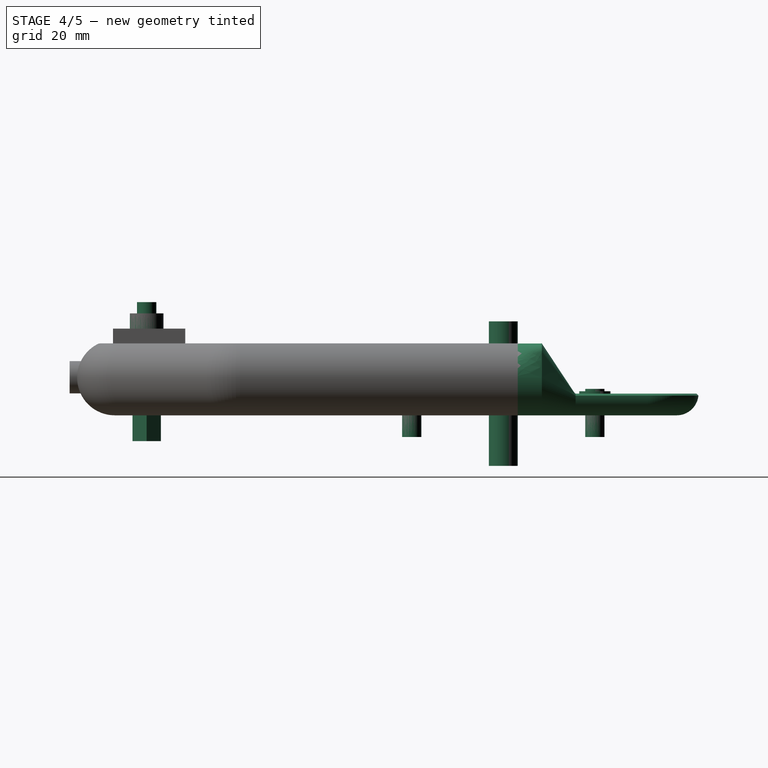
[diagram: stage 4 of 5 — right view after this stage's code; geometry added in this stage tinted green]
FEATURE [PartDesign::Body] Body001  label="TaperedScrewMountHole2"
  BaseFeature = -> Fusion
  Group = -> [Clone]
  Origin = -> Origin001
  Placement = pos=(0,-38,0) rot=(0,0,1;0rad)
  Tip = -> Clone
FEATURE [Part::MultiFuse] Fusion001  label="BroditMountHoles"
  Placement = pos=(0,-3,0) rot=(0,0,1;0rad)
  Shapes = -> [Cylinder,Fusion,Body001]
FEATURE [Sketcher::SketchObject] Sketch006  label="intermediate"
  AttachmentOffset = pos=(0,0,-5) rot=(0,0,1;0rad)
  ExternalGeometry = -> [Sketch003]
  MapMode = 5
  Placement = pos=(0,5,1.1e-15) rot=(1,0,0;1.5708rad)
  Support = -> [XZ_Plane]
  sketch-geometry (11):
    g0: LineSegment [constr] StartX=31.9998 StartY=10.4196 StartZ=0 EndX=34.94 EndY=10.4196 EndZ=0
    g1: ArcOfCircle CenterX=28.9684 CenterY=3.32104 CenterZ=0 NormalX=0 NormalY=0 NormalZ=1 AngleXU=0 Radius=7.82104 StartAngle=4.71239 EndAngle=6.28319
    g2: LineSegment StartX=28.9684 StartY=-4.5 StartZ=0 EndX=25 EndY=-4.5 EndZ=0
    g3: LineSegment StartX=25 StartY=-4.5 StartZ=0 EndX=25 EndY=0 EndZ=0
    g4: LineSegment StartX=25 StartY=0 StartZ=0 EndX=30.647 EndY=0 EndZ=0
    g5: ArcOfCircle CenterX=30.647 CenterY=2.36156 CenterZ=0 NormalX=0 NormalY=0 NormalZ=1 AngleXU=0 Radius=2.36156 StartAngle=4.71239 EndAngle=6.19806
    g6: ArcOfCircle CenterX=8.09053 CenterY=4.2864 CenterZ=0 NormalX=0 NormalY=0 NormalZ=1 AngleXU=0 Radius=25 StartAngle=6.19806 EndAngle=6.28319
    g7: LineSegment StartX=33.0905 StartY=4.2864 StartZ=0 EndX=33.0905 EndY=8.57018 EndZ=0
    g8: LineSegment StartX=36.7894 StartY=3.32104 StartZ=0 EndX=36.7894 EndY=8.57018 EndZ=0
    g9: ArcOfCircle CenterX=34.94 CenterY=8.57018 CenterZ=0 NormalX=0 NormalY=0 NormalZ=1 AngleXU=0 Radius=1.84943 StartAngle=1.5708 EndAngle=3.14159
    g10: ArcOfCircle CenterX=34.94 CenterY=8.57018 CenterZ=0 NormalX=0 NormalY=0 NormalZ=1 AngleXU=0 Radius=1.84943 StartAngle=3e-16 EndAngle=1.5708
  constraints (20):
    c: Horizontal(g0)
    c: Horizontal(g1,g1)
    c: Coincident(g2,g1)
    c: Coincident(g3,g2)
    c: Coincident(g4,g3)
    c: Coincident(g5,g4)
    c: Coincident(g5,g6)
    c: Horizontal(g6,g6)
    c: Coincident(g7,g6)
    c: Vertical(g7)
    c: Coincident(g8,g1)
    c: Vertical(g8)
    c: Coincident(g9,g7)
    c: Coincident(g10,g9)
    c: Coincident(g10,g9)
    c: Coincident(g10,g8)
    c: Horizontal(g7,g9)
    c: Horizontal(g9,g8)
    c: Vertical(g9,g9)
    c: Coincident(g0,g9)
FEATURE [Part::Loft] Loft
  Closed = false
  MaxDegree = 5
  Ruled = false
  Sections = -> [Sketch006,Sketch003]
  Solid = true
FEATURE [Sketcher::SketchObject] Sketch007
  AttachmentOffset = pos=(0,0,-12) rot=(0,0,1;0rad)
  ExternalGeometry = -> [Sketch006]
  MapMode = 5
  Placement = pos=(0,12,2.7e-15) rot=(1,0,0;1.5708rad)
  Support = -> [XZ_Plane]
  sketch-geometry (10):
    g0: LineSegment StartX=28.9684 StartY=-4.5 StartZ=0 EndX=25 EndY=-4.5 EndZ=0
    g1: LineSegment StartX=25 StartY=-4.5 StartZ=0 EndX=25 EndY=0 EndZ=0
    g2: LineSegment StartX=25 StartY=0 StartZ=0 EndX=30.647 EndY=0 EndZ=0
    g3: LineSegment StartX=30.647 StartY=0 StartZ=0 EndX=33 EndY=0 EndZ=0
    g4: LineSegment StartX=33 StartY=0 StartZ=0 EndX=33.0905 EndY=0 EndZ=0
    g5: LineSegment StartX=33.0905 StartY=0 StartZ=0 EndX=33.1905 EndY=-0.1 EndZ=0
    g6: LineSegment StartX=33.1905 StartY=-0.1 StartZ=0 EndX=33.2905 EndY=-0.2 EndZ=0
    g7: LineSegment StartX=33.2905 StartY=-0.2 StartZ=0 EndX=33.3905 EndY=-0.3 EndZ=0
    g8: LineSegment StartX=33.3905 StartY=-0.3 StartZ=0 EndX=33.4905 EndY=-0.4 EndZ=0
    g9: ArcOfCircle CenterX=28.9684 CenterY=0.0439137 CenterZ=0 NormalX=0 NormalY=0 NormalZ=1 AngleXU=0 Radius=4.54391 StartAngle=4.71239 EndAngle=6.18534
  constraints (23):
    c: Coincident(g0,g-6)
    c: Coincident(g0,g-5)
    c: Coincident(g1,g0)
    c: Coincident(g1,g-4)
    c: Coincident(g2,g1)
    c: Coincident(g2,g-12)
    c: Coincident(g3,g2)
    c: Horizontal(g3)
    c: Vertical(g3,g-12)
    c: Horizontal(g4)
    c: Vertical(g4,g-11)
    c: Coincident(g4,g3)
    c: Coincident(g5,g4)
    c: DistanceY(g5,g4) = 0.1
    c: Equal(g5,g6)
    c: Equal(g6,g7)
    c: Equal(g7,g8)
    c: Tangent(g6,g5) = -1.5708
    c: Tangent(g7,g6) = -1.5708
    c: Tangent(g8,g7) = -1.5708
    c: DistanceX(g5,g5) = 0.1
    c: Tangent(g9,g0) = 1.5708
    c: Coincident(g9,g8)
FEATURE [Part::Loft] Loft001
  Closed = false
  MaxDegree = 5
  Ruled = false
  Sections = -> [Sketch006,Sketch007]
  Solid = true
FEATURE [Part::MultiFuse] Fusion002  label="intermediate_piece"
  Shapes = -> [Loft,Loft001]
FEATURE [Sketcher::SketchObject] Sketch008  label="shell_sweep_path2"
  ExternalGeometry = -> [Sketch007,Sketch]
  MapMode = 5
  Support = -> [XY_Plane]
  sketch-geometry (5):
    g0: LineSegment StartX=33 StartY=12 StartZ=0 EndX=33 EndY=27 EndZ=0
    g1: ArcOfCircle CenterX=23 CenterY=27 CenterZ=0 NormalX=0 NormalY=0 NormalZ=1 AngleXU=0 Radius=10 StartAngle=-3.6e-15 EndAngle=1.5708
    g2: LineSegment StartX=-33 StartY=27 StartZ=0 EndX=-33 EndY=12 EndZ=0
    g3: ArcOfCircle CenterX=-23 CenterY=27 CenterZ=0 NormalX=0 NormalY=0 NormalZ=1 AngleXU=0 Radius=10 StartAngle=1.5708 EndAngle=3.14159
    g4: LineSegment StartX=-23 StartY=37 StartZ=0 EndX=23 EndY=37 EndZ=0
  constraints (14):
    c: Vertical(g0)
    c: Horizontal(g0,g-3)
    c: Tangent(g1,g0) = -1.5708
    c: PointOnObject(g0,g-4)
    c: Equal(g1,g-5)
    c: Symmetric(g2,g0,g-2)
    c: Symmetric(g2,g0,g-2)
    c: Coincident(g3,g2)
    c: Symmetric(g3,g1,g-2)
    c: Coincident(g4,g3)
    c: Coincident(g4,g1)
    c: Vertical(g3,g3)
    c: Horizontal(g2,g3)
    c: DistanceY(g0,g0) = 15
FEATURE [Part::Sweep] Sweep  label="UpperBevelSweep"
  Frenet = false
  Sections = -> [Sketch007]
  Solid = true
  Spine = -> Sketch008
  Transition = 1
FEATURE [Part::MultiFuse] Fusion005  label="MainCutouts"
  Shapes = -> [Fusion001,Extrude002,Part__Mirroring001,Fusion003]
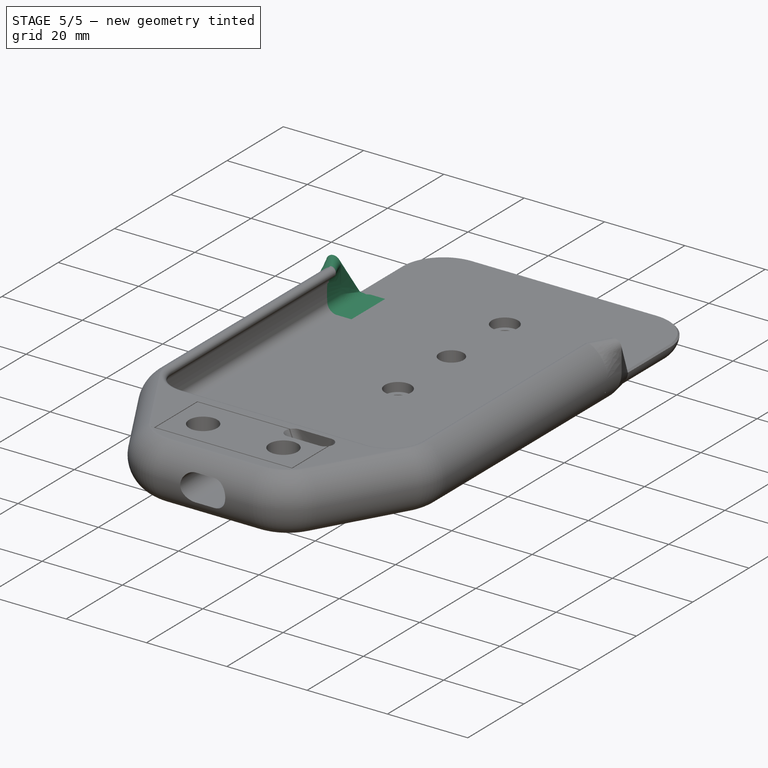
[diagram: stage 5 of 5 — iso view after this stage's code; geometry added in this stage tinted green]
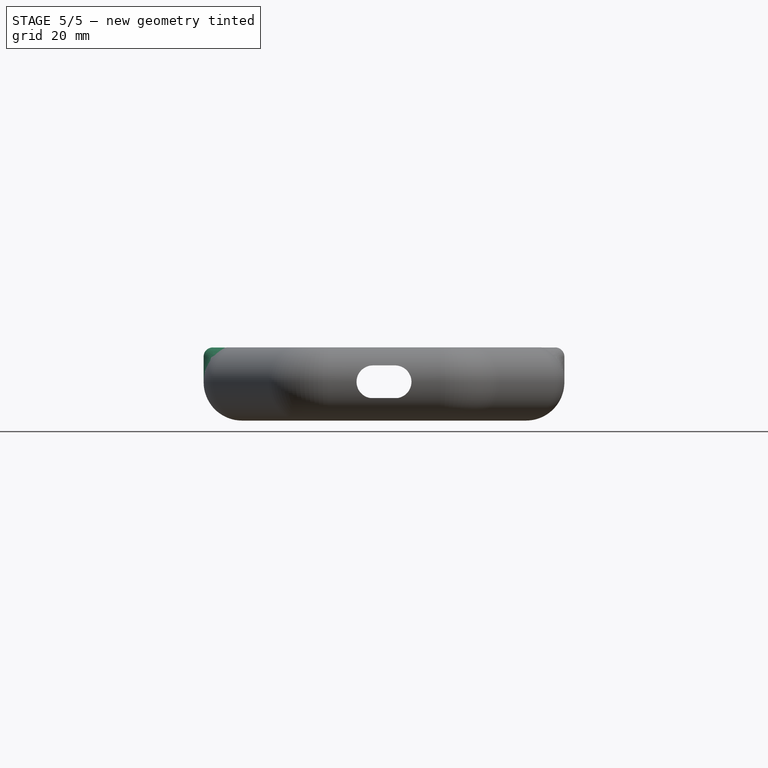
[diagram: stage 5 of 5 — front view after this stage's code; geometry added in this stage tinted green]
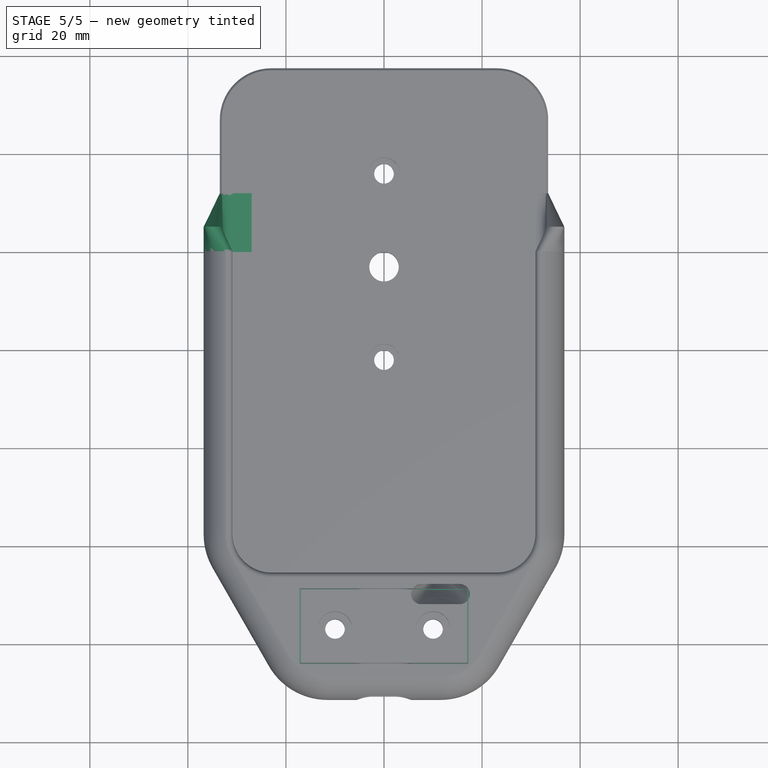
[diagram: stage 5 of 5 — top view after this stage's code; geometry added in this stage tinted green]
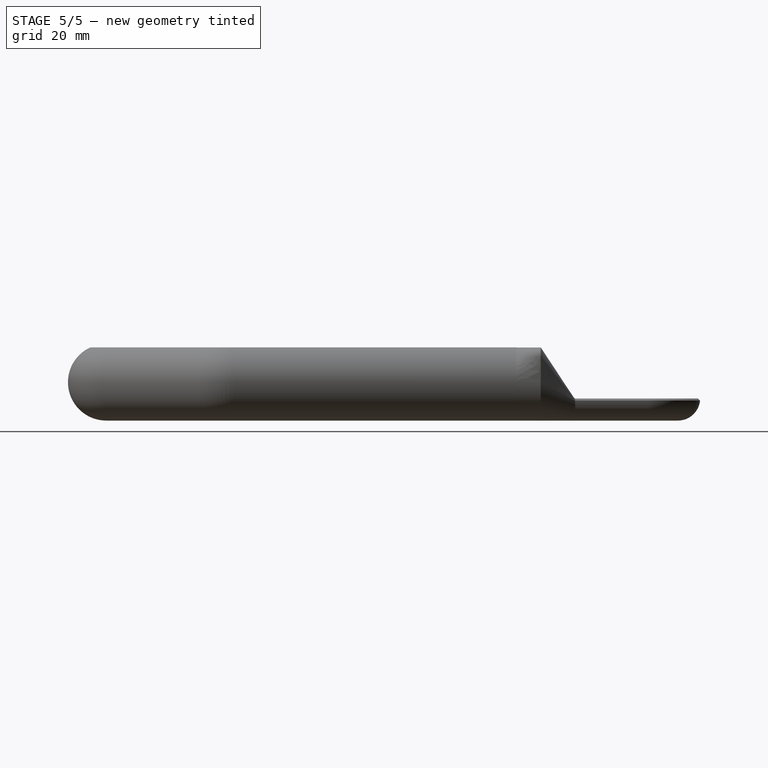
[diagram: stage 5 of 5 — right view after this stage's code; geometry added in this stage tinted green]
FEATURE [Part::Mirroring] Part__Mirroring  label="intermediate_piece (Mirror #1)"
  Base = (0,0,0)
  Normal = (1,0,0)
  Source = -> Fusion002
FEATURE [PartDesign::Body] Body
  Group = -> [Sketch,Sketch001,Sketch002,Sketch003,Sketch004,Sketch006,Sketch007,Sketch008,Sketch009,Sketch010,Box001,SubtractivePipe,Sketch011,SubtractivePipe001,Box002,Box003,Sketch012,Sketch013,SubtractiveLoft]
  Origin = -> Origin
  Tip = -> SubtractiveLoft
FEATURE [Part::MultiFuse] Fusion004  label="BaseBodyWithoutCutouts"
  Shapes = -> [Part__Mirroring,Fusion002,Sweep,Body]
FEATURE [Part::Cut] Cut001  label="BaseBodyWithCutouts"
  Base = -> Fusion004
  Tool = -> Fusion005
FEATURE [Part::Box] Box005  label="ClampSeparatorOuter"
  AttacherType = Attacher::AttachEngine3D
  Height = 10
  Length = 34.4
  Placement = pos=(-17.2,-84.2,3) rot=(0,0,1;0rad)
  Width = 15.4
FEATURE [Part::Cut] Cut002  label="MainBody"
  Base = -> Cut001
  Tool = -> Box005
FEATURE [Part::MultiCommon] Common  label="ClampPlate"
  Shapes = -> [Cut001,Box004]
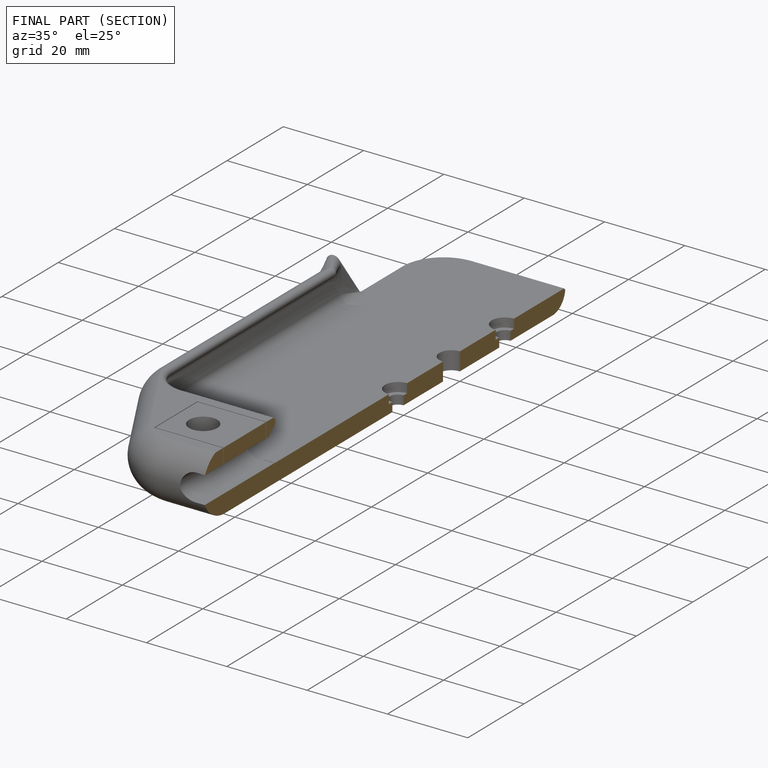
[diagram: finished part — half-section view (interior)]
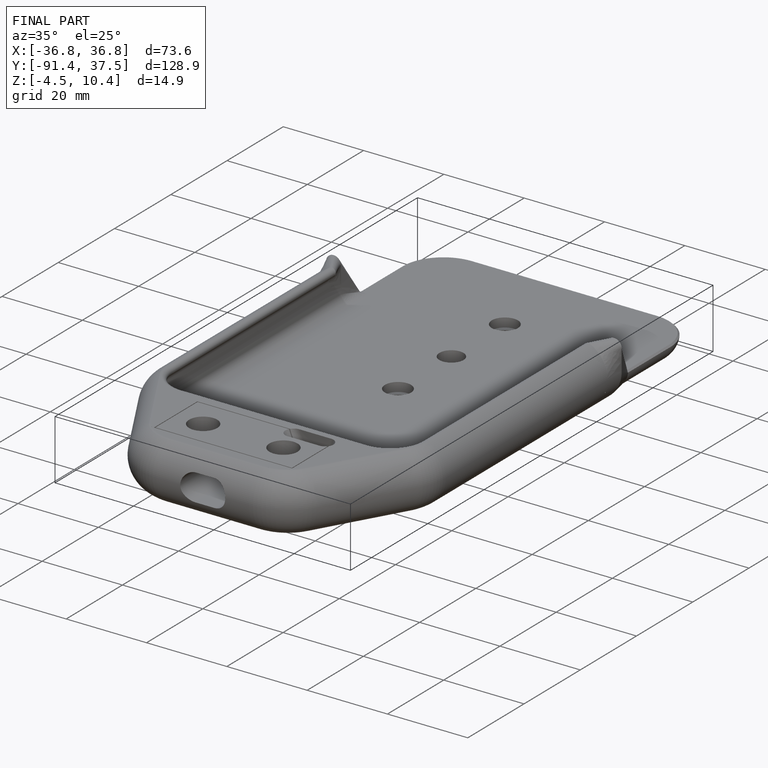
[diagram: finished part — iso view with bounding-box wireframe]
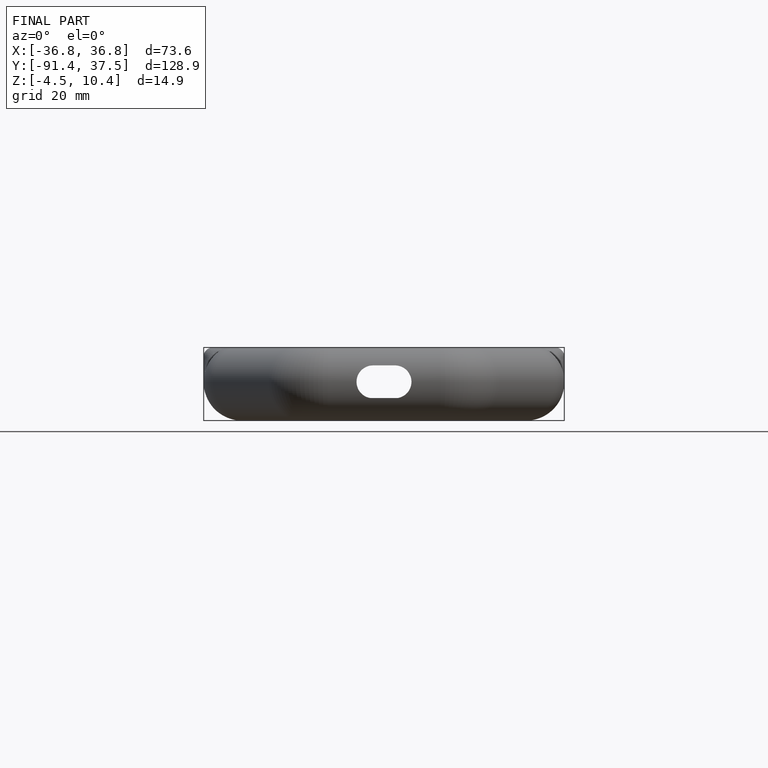
[diagram: finished part — front view with bounding-box wireframe]
